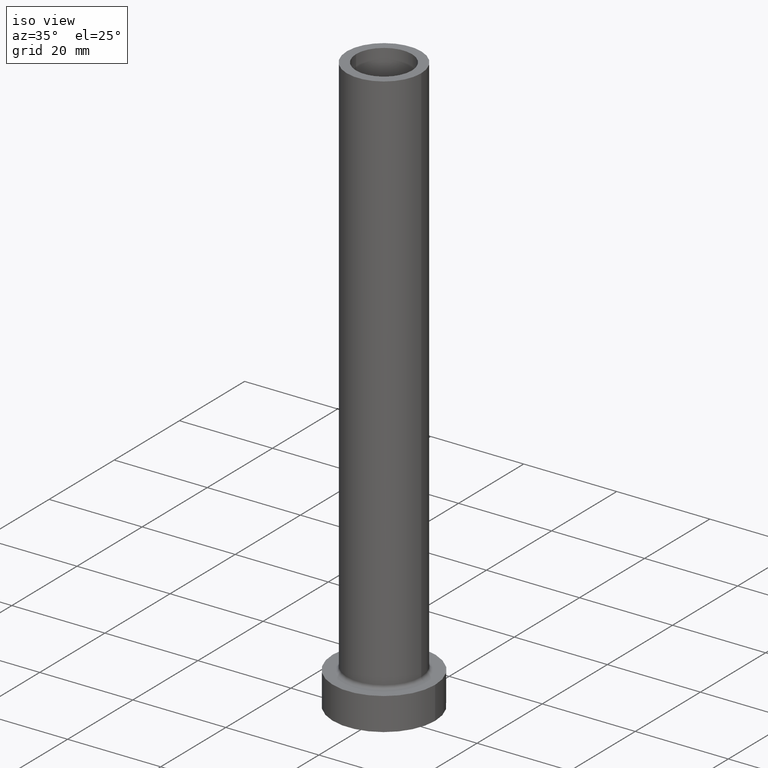
[diagram: clean part render]
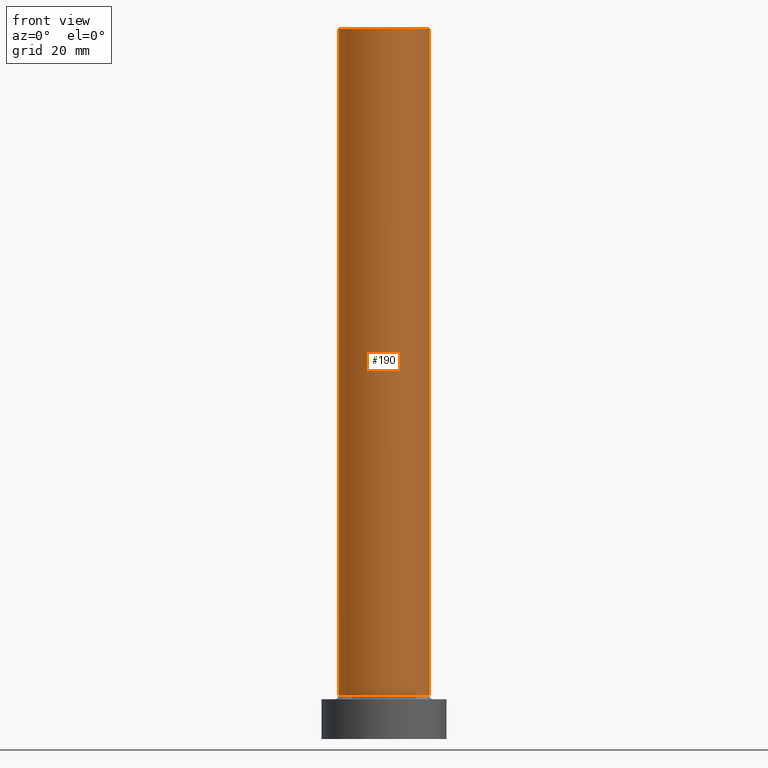
[diagram: tour spotlight — one face highlighted and labeled with its STEP entity id]
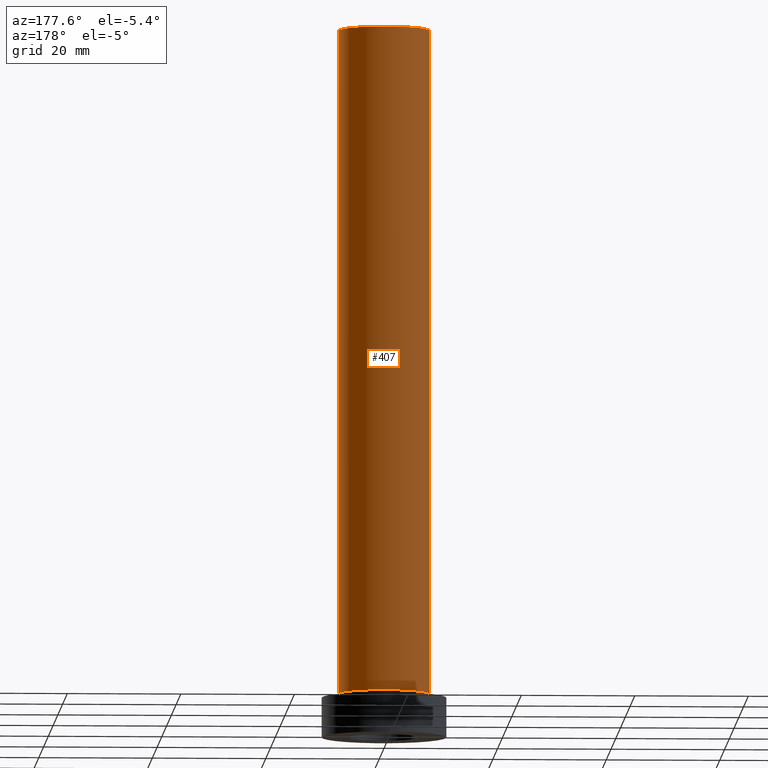
[diagram: tour spotlight — one face highlighted and labeled with its STEP entity id]
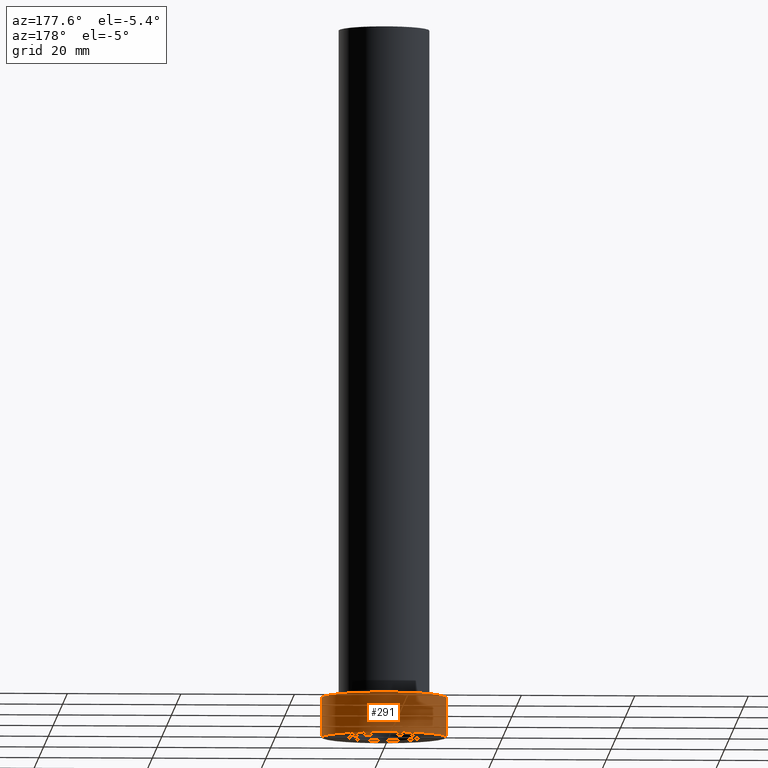
[diagram: tour spotlight — one face highlighted and labeled with its STEP entity id]
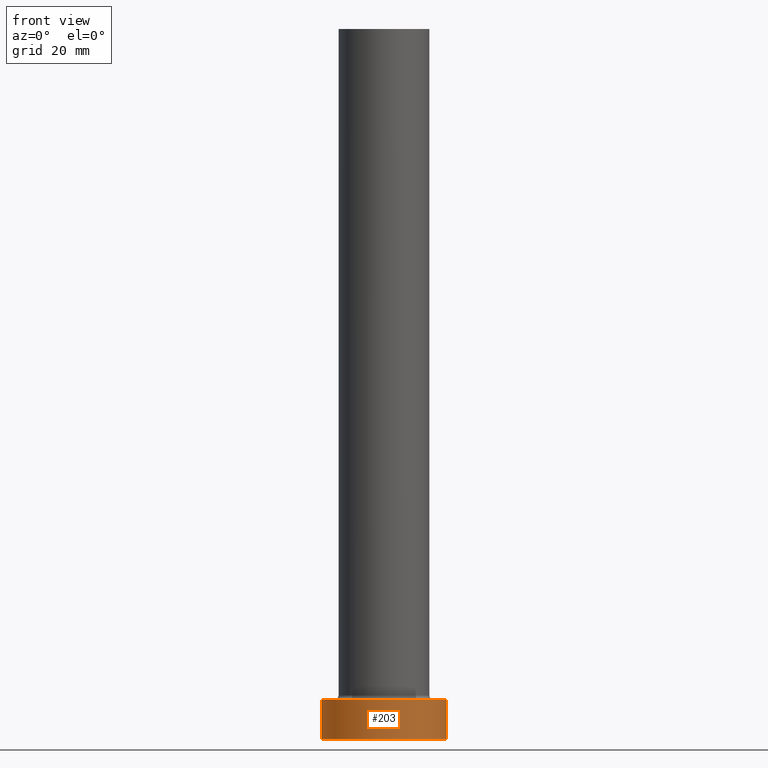
[diagram: tour spotlight — one face highlighted and labeled with its STEP entity id]
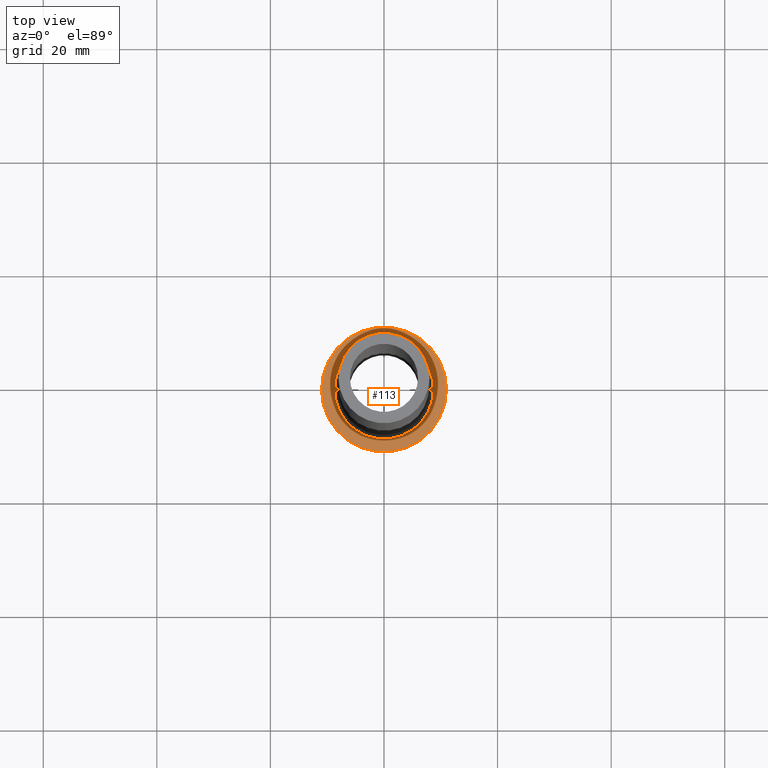
[diagram: tour spotlight — one face highlighted and labeled with its STEP entity id]
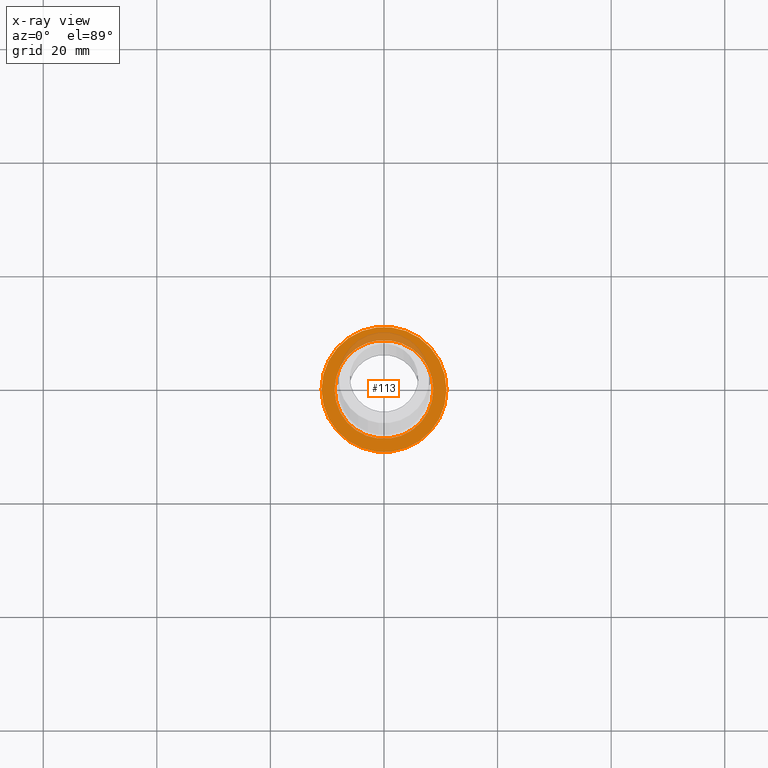
[diagram: x-ray of the same camera — body ghosted, this tour face saturated]
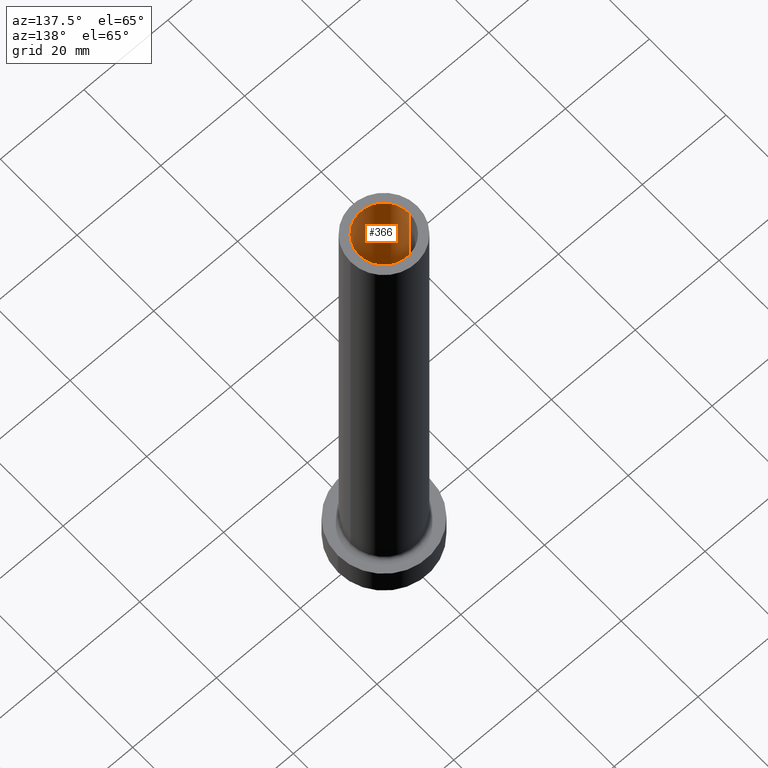
[diagram: tour spotlight — one face highlighted and labeled with its STEP entity id]
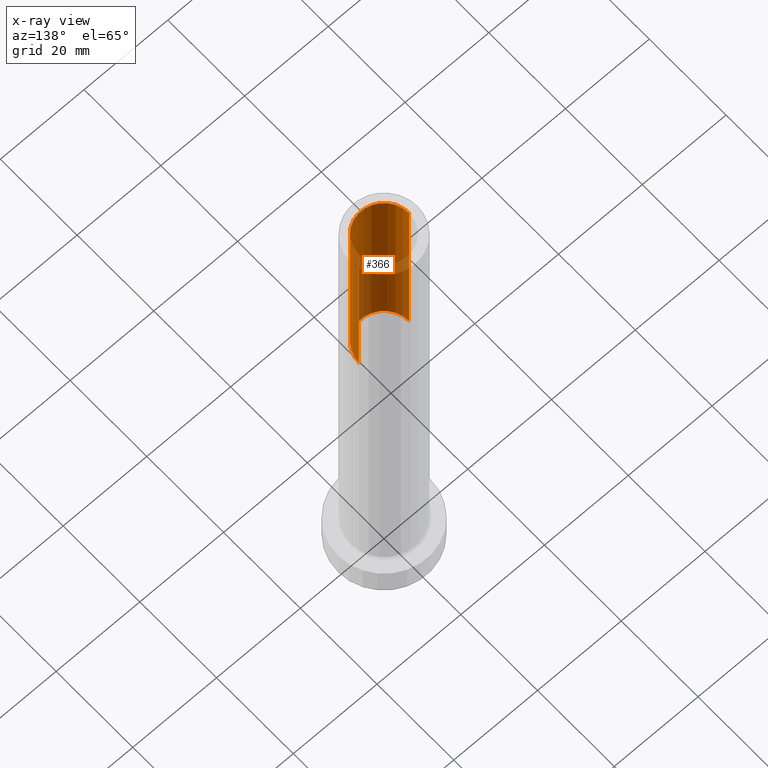
[diagram: x-ray of the same camera — body ghosted, this tour face saturated]
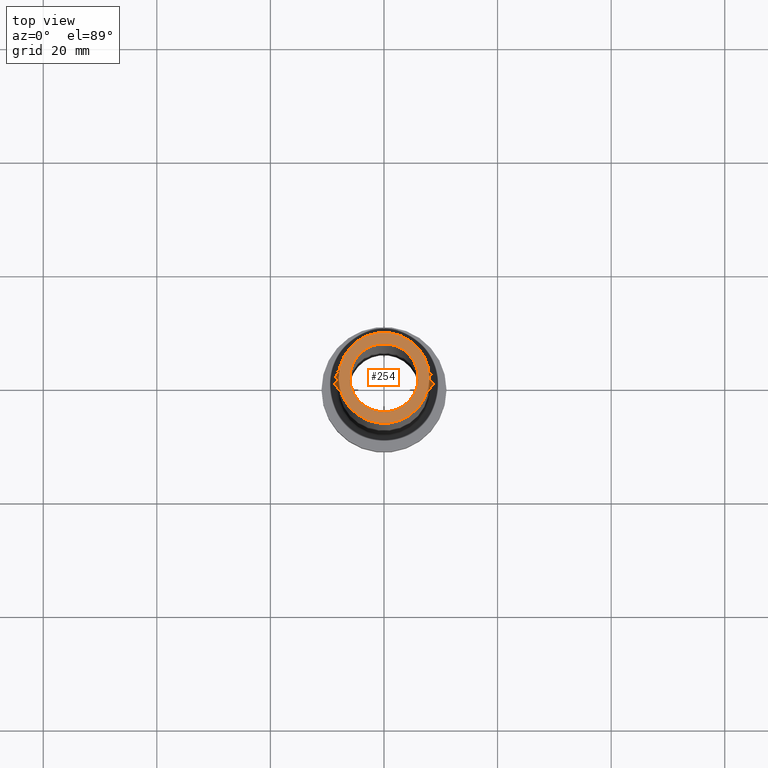
[diagram: tour spotlight — one face highlighted and labeled with its STEP entity id]
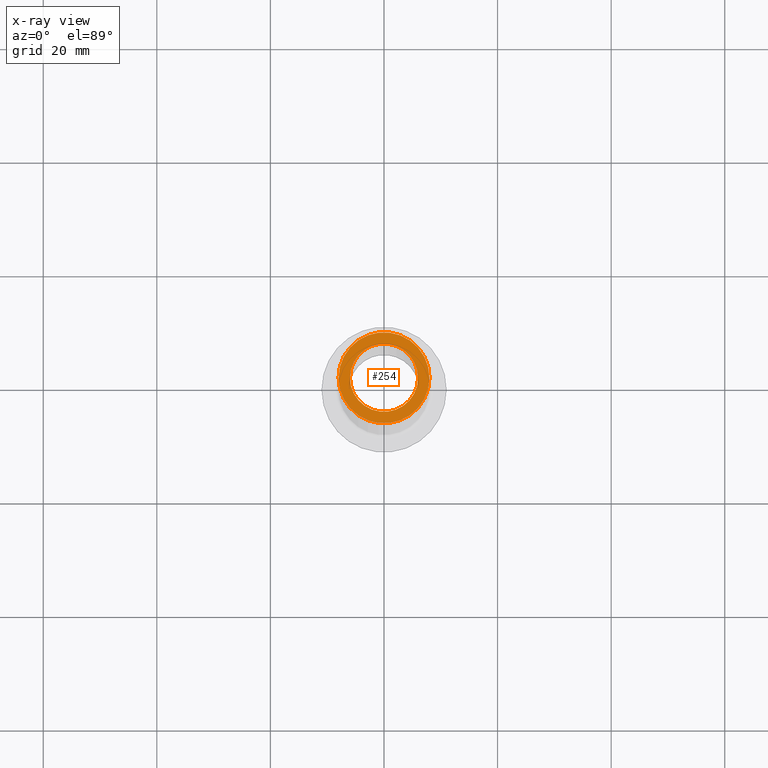
[diagram: x-ray of the same camera — body ghosted, this tour face saturated]
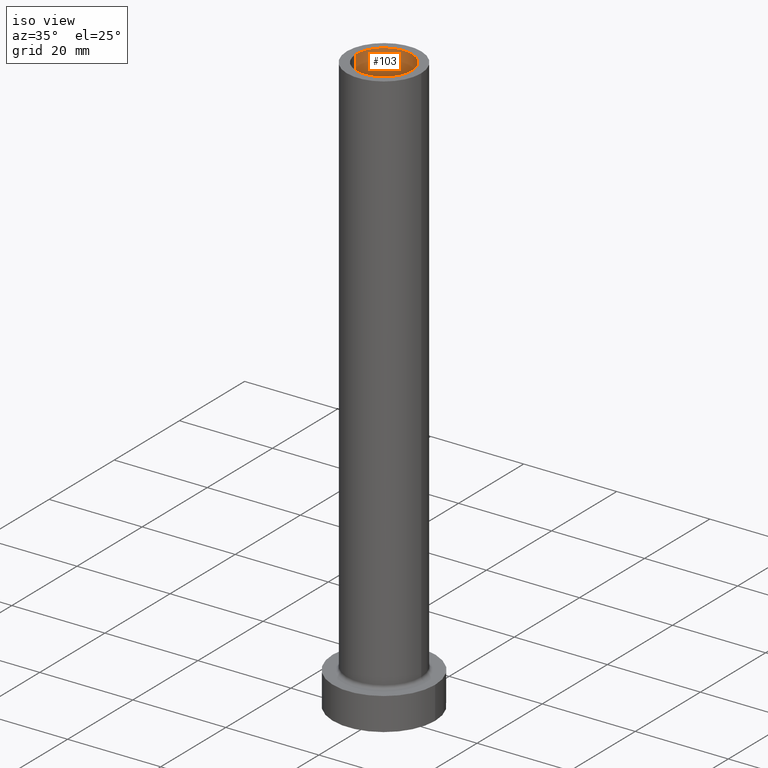
[diagram: tour spotlight — one face highlighted and labeled with its STEP entity id]
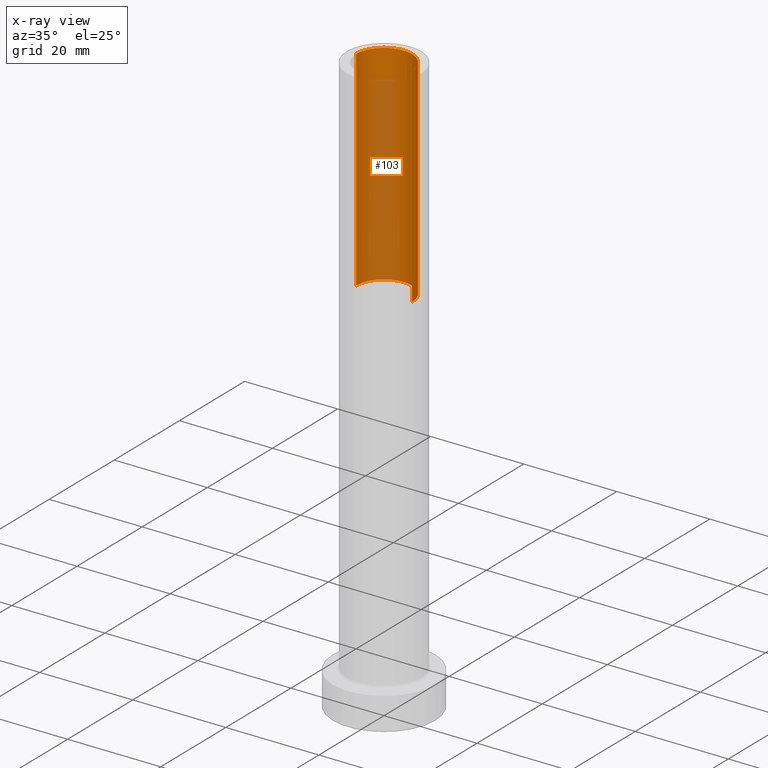
[diagram: x-ray of the same camera — body ghosted, this tour face saturated]
A machine part: a face-by-face anatomy tour. The part has 14 B-rep faces; the first image is the clean iso view, then the 8 largest visible faces are spotlighted one at a time (largest first), each with its STEP entity span.

Face 1 — front view, entity #190. In plain terms, the highlighted cylindrical surface (partial cylindrical patch) has radius 8 mm, axis along (-0, -0, -1).
Definition (entity closure, byte-faithful):
#8 = CARTESIAN_POINT ( 'NONE',  ( 8.000000000000000000, 9.797174393178825657E-16, 125.0000000000000000 ) ) ;
#11 = LINE ( 'NONE', #8, #439 ) ;
#19 = ORIENTED_EDGE ( 'NONE', *, *, #304, .F. ) ;
#43 = DIRECTION ( 'NONE',  ( -0.000000000000000000, -0.000000000000000000, -1.000000000000000000 ) ) ;
#47 = VERTEX_POINT ( 'NONE', #260 ) ;
#62 = DIRECTION ( 'NONE',  ( 1.000000000000000000, 0.000000000000000000, 0.000000000000000000 ) ) ;
#68 = CARTESIAN_POINT ( 'NONE',  ( 8.000000000000000000, 9.797174393178825657E-16, 7.699999999999998401 ) ) ;
#73 = DIRECTION ( 'NONE',  ( -0.000000000000000000, -0.000000000000000000, -1.000000000000000000 ) ) ;
#75 = CARTESIAN_POINT ( 'NONE',  ( 0.000000000000000000, 0.000000000000000000, 7.699999999999998401 ) ) ;
#80 = AXIS2_PLACEMENT_3D ( 'NONE', #75, #142, #437 ) ;
#86 = ORIENTED_EDGE ( 'NONE', *, *, #370, .T. ) ;
#88 = AXIS2_PLACEMENT_3D ( 'NONE', #352, #456, #62 ) ;
#127 = ORIENTED_EDGE ( 'NONE', *, *, #287, .F. ) ;
#142 = DIRECTION ( 'NONE',  ( 0.000000000000000000, 0.000000000000000000, 1.000000000000000000 ) ) ;
#144 = AXIS2_PLACEMENT_3D ( 'NONE', #251, #73, #288 ) ;
#190 = ADVANCED_FACE ( 'NONE', ( #280 ), #210, .T. ) ;
#193 = VERTEX_POINT ( 'NONE', #433 ) ;
#210 = CYLINDRICAL_SURFACE ( 'NONE', #144, 8.000000000000000000 ) ;
#240 = VERTEX_POINT ( 'NONE', #390 ) ;
#248 = DIRECTION ( 'NONE',  ( -0.000000000000000000, -0.000000000000000000, -1.000000000000000000 ) ) ;
#251 = CARTESIAN_POINT ( 'NONE',  ( 0.000000000000000000, 0.000000000000000000, 125.0000000000000000 ) ) ;
#260 = CARTESIAN_POINT ( 'NONE',  ( 8.000000000000000000, 9.797174393178825657E-16, 125.0000000000000000 ) ) ;
#280 = FACE_OUTER_BOUND ( 'NONE', #316, .T. ) ;
#285 = ORIENTED_EDGE ( 'NONE', *, *, #377, .T. ) ;
#287 = EDGE_CURVE ( 'NONE', #240, #47, #294, .T. ) ;
#288 = DIRECTION ( 'NONE',  ( -1.000000000000000000, 0.000000000000000000, 0.000000000000000000 ) ) ;
#294 = CIRCLE ( 'NONE', #88, 8.000000000000000000 ) ;
#295 = VECTOR ( 'NONE', #43, 1000.000000000000000 ) ;
#304 = EDGE_CURVE ( 'NONE', #47, #423, #11, .T. ) ;
#316 = EDGE_LOOP ( 'NONE', ( #19, #127, #285, #86 ) ) ;
#334 = CIRCLE ( 'NONE', #80, 8.000000000000000000 ) ;
#352 = CARTESIAN_POINT ( 'NONE',  ( 0.000000000000000000, 0.000000000000000000, 125.0000000000000000 ) ) ;
#367 = LINE ( 'NONE', #436, #295 ) ;
#370 = EDGE_CURVE ( 'NONE', #193, #423, #334, .T. ) ;
#377 = EDGE_CURVE ( 'NONE', #240, #193, #367, .T. ) ;
#390 = CARTESIAN_POINT ( 'NONE',  ( -8.000000000000000000, 0.000000000000000000, 125.0000000000000000 ) ) ;
#423 = VERTEX_POINT ( 'NONE', #68 ) ;
#433 = CARTESIAN_POINT ( 'NONE',  ( -8.000000000000000000, 0.000000000000000000, 7.699999999999998401 ) ) ;
#436 = CARTESIAN_POINT ( 'NONE',  ( -8.000000000000000000, 0.000000000000000000, 125.0000000000000000 ) ) ;
#437 = DIRECTION ( 'NONE',  ( 1.000000000000000000, 0.000000000000000000, 0.000000000000000000 ) ) ;
#439 = VECTOR ( 'NONE', #248, 1000.000000000000000 ) ;
#456 = DIRECTION ( 'NONE',  ( 0.000000000000000000, 0.000000000000000000, 1.000000000000000000 ) ) ;

Face 2 — auxiliary view, entity #407. In plain terms, the highlighted cylindrical surface (partial cylindrical patch) has radius 8 mm, axis along (-0, -0, -1).
Definition (entity closure, byte-faithful):
#6 = DIRECTION ( 'NONE',  ( -1.000000000000000000, 0.000000000000000000, 0.000000000000000000 ) ) ;
#8 = CARTESIAN_POINT ( 'NONE',  ( 8.000000000000000000, 9.797174393178825657E-16, 125.0000000000000000 ) ) ;
#11 = LINE ( 'NONE', #8, #439 ) ;
#29 = DIRECTION ( 'NONE',  ( -0.000000000000000000, -0.000000000000000000, -1.000000000000000000 ) ) ;
#33 = CARTESIAN_POINT ( 'NONE',  ( 0.000000000000000000, 0.000000000000000000, 125.0000000000000000 ) ) ;
#43 = DIRECTION ( 'NONE',  ( -0.000000000000000000, -0.000000000000000000, -1.000000000000000000 ) ) ;
#47 = VERTEX_POINT ( 'NONE', #260 ) ;
#68 = CARTESIAN_POINT ( 'NONE',  ( 8.000000000000000000, 9.797174393178825657E-16, 7.699999999999998401 ) ) ;
#92 = AXIS2_PLACEMENT_3D ( 'NONE', #33, #427, #317 ) ;
#124 = ORIENTED_EDGE ( 'NONE', *, *, #377, .F. ) ;
#145 = EDGE_CURVE ( 'NONE', #423, #193, #264, .T. ) ;
#171 = FACE_OUTER_BOUND ( 'NONE', #351, .T. ) ;
#181 = AXIS2_PLACEMENT_3D ( 'NONE', #349, #378, #440 ) ;
#193 = VERTEX_POINT ( 'NONE', #433 ) ;
#240 = VERTEX_POINT ( 'NONE', #390 ) ;
#248 = DIRECTION ( 'NONE',  ( -0.000000000000000000, -0.000000000000000000, -1.000000000000000000 ) ) ;
#260 = CARTESIAN_POINT ( 'NONE',  ( 8.000000000000000000, 9.797174393178825657E-16, 125.0000000000000000 ) ) ;
#264 = CIRCLE ( 'NONE', #181, 8.000000000000000000 ) ;
#273 = CIRCLE ( 'NONE', #92, 8.000000000000000000 ) ;
#283 = CARTESIAN_POINT ( 'NONE',  ( 0.000000000000000000, 0.000000000000000000, 125.0000000000000000 ) ) ;
#295 = VECTOR ( 'NONE', #43, 1000.000000000000000 ) ;
#300 = ORIENTED_EDGE ( 'NONE', *, *, #421, .F. ) ;
#304 = EDGE_CURVE ( 'NONE', #47, #423, #11, .T. ) ;
#317 = DIRECTION ( 'NONE',  ( 1.000000000000000000, 0.000000000000000000, 0.000000000000000000 ) ) ;
#321 = CYLINDRICAL_SURFACE ( 'NONE', #361, 8.000000000000000000 ) ;
#347 = ORIENTED_EDGE ( 'NONE', *, *, #145, .T. ) ;
#349 = CARTESIAN_POINT ( 'NONE',  ( 0.000000000000000000, 0.000000000000000000, 7.699999999999998401 ) ) ;
#351 = EDGE_LOOP ( 'NONE', ( #300, #395, #347, #124 ) ) ;
#361 = AXIS2_PLACEMENT_3D ( 'NONE', #283, #29, #6 ) ;
#367 = LINE ( 'NONE', #436, #295 ) ;
#377 = EDGE_CURVE ( 'NONE', #240, #193, #367, .T. ) ;
#378 = DIRECTION ( 'NONE',  ( 0.000000000000000000, 0.000000000000000000, 1.000000000000000000 ) ) ;
#390 = CARTESIAN_POINT ( 'NONE',  ( -8.000000000000000000, 0.000000000000000000, 125.0000000000000000 ) ) ;
#395 = ORIENTED_EDGE ( 'NONE', *, *, #304, .T. ) ;
#407 = ADVANCED_FACE ( 'NONE', ( #171 ), #321, .T. ) ;
#421 = EDGE_CURVE ( 'NONE', #47, #240, #273, .T. ) ;
#423 = VERTEX_POINT ( 'NONE', #68 ) ;
#427 = DIRECTION ( 'NONE',  ( 0.000000000000000000, 0.000000000000000000, 1.000000000000000000 ) ) ;
#433 = CARTESIAN_POINT ( 'NONE',  ( -8.000000000000000000, 0.000000000000000000, 7.699999999999998401 ) ) ;
#436 = CARTESIAN_POINT ( 'NONE',  ( -8.000000000000000000, 0.000000000000000000, 125.0000000000000000 ) ) ;
#439 = VECTOR ( 'NONE', #248, 1000.000000000000000 ) ;
#440 = DIRECTION ( 'NONE',  ( 1.000000000000000000, 0.000000000000000000, 0.000000000000000000 ) ) ;

Face 3 — auxiliary view, entity #291. In plain terms, the highlighted cylindrical surface (partial cylindrical patch) has radius 11 mm, axis along (-0, -0, -1).
Definition (entity closure, byte-faithful):
#39 = LINE ( 'NONE', #327, #141 ) ;
#50 = DIRECTION ( 'NONE',  ( 1.000000000000000000, 0.000000000000000000, 0.000000000000000000 ) ) ;
#59 = CARTESIAN_POINT ( 'NONE',  ( -11.00000000000000000, 0.000000000000000000, 7.000000000000000000 ) ) ;
#128 = EDGE_CURVE ( 'NONE', #405, #196, #355, .T. ) ;
#141 = VECTOR ( 'NONE', #161, 1000.000000000000000 ) ;
#147 = VERTEX_POINT ( 'NONE', #156 ) ;
#150 = DIRECTION ( 'NONE',  ( 0.000000000000000000, 0.000000000000000000, 1.000000000000000000 ) ) ;
#156 = CARTESIAN_POINT ( 'NONE',  ( -11.00000000000000000, 0.000000000000000000, 0.000000000000000000 ) ) ;
#158 = ORIENTED_EDGE ( 'NONE', *, *, #411, .T. ) ;
#159 = CYLINDRICAL_SURFACE ( 'NONE', #259, 11.00000000000000000 ) ;
#161 = DIRECTION ( 'NONE',  ( -0.000000000000000000, -0.000000000000000000, -1.000000000000000000 ) ) ;
#166 = CARTESIAN_POINT ( 'NONE',  ( 11.00000000000000000, 1.347111479062088405E-15, 0.000000000000000000 ) ) ;
#176 = CIRCLE ( 'NONE', #267, 11.00000000000000000 ) ;
#188 = EDGE_LOOP ( 'NONE', ( #211, #158, #353, #422 ) ) ;
#196 = VERTEX_POINT ( 'NONE', #59 ) ;
#205 = FACE_OUTER_BOUND ( 'NONE', #188, .T. ) ;
#211 = ORIENTED_EDGE ( 'NONE', *, *, #128, .F. ) ;
#214 = VERTEX_POINT ( 'NONE', #166 ) ;
#229 = CARTESIAN_POINT ( 'NONE',  ( -11.00000000000000000, 0.000000000000000000, 7.000000000000000000 ) ) ;
#232 = DIRECTION ( 'NONE',  ( -0.000000000000000000, -0.000000000000000000, -1.000000000000000000 ) ) ;
#235 = CARTESIAN_POINT ( 'NONE',  ( 0.000000000000000000, 0.000000000000000000, 7.000000000000000000 ) ) ;
#242 = DIRECTION ( 'NONE',  ( -0.000000000000000000, -0.000000000000000000, -1.000000000000000000 ) ) ;
#249 = VECTOR ( 'NONE', #232, 1000.000000000000000 ) ;
#259 = AXIS2_PLACEMENT_3D ( 'NONE', #279, #242, #438 ) ;
#267 = AXIS2_PLACEMENT_3D ( 'NONE', #379, #150, #50 ) ;
#279 = CARTESIAN_POINT ( 'NONE',  ( 0.000000000000000000, 0.000000000000000000, 7.000000000000000000 ) ) ;
#291 = ADVANCED_FACE ( 'NONE', ( #205 ), #159, .T. ) ;
#327 = CARTESIAN_POINT ( 'NONE',  ( 11.00000000000000000, 1.347111479062088405E-15, 7.000000000000000000 ) ) ;
#337 = EDGE_CURVE ( 'NONE', #196, #147, #418, .T. ) ;
#338 = EDGE_CURVE ( 'NONE', #214, #147, #176, .T. ) ;
#345 = DIRECTION ( 'NONE',  ( 1.000000000000000000, 0.000000000000000000, 0.000000000000000000 ) ) ;
#353 = ORIENTED_EDGE ( 'NONE', *, *, #338, .T. ) ;
#355 = CIRCLE ( 'NONE', #416, 11.00000000000000000 ) ;
#379 = CARTESIAN_POINT ( 'NONE',  ( 0.000000000000000000, 0.000000000000000000, 0.000000000000000000 ) ) ;
#405 = VERTEX_POINT ( 'NONE', #424 ) ;
#411 = EDGE_CURVE ( 'NONE', #405, #214, #39, .T. ) ;
#416 = AXIS2_PLACEMENT_3D ( 'NONE', #235, #454, #345 ) ;
#418 = LINE ( 'NONE', #229, #249 ) ;
#422 = ORIENTED_EDGE ( 'NONE', *, *, #337, .F. ) ;
#424 = CARTESIAN_POINT ( 'NONE',  ( 11.00000000000000000, 1.347111479062088405E-15, 7.000000000000000000 ) ) ;
#438 = DIRECTION ( 'NONE',  ( -1.000000000000000000, 0.000000000000000000, 0.000000000000000000 ) ) ;
#454 = DIRECTION ( 'NONE',  ( 0.000000000000000000, 0.000000000000000000, 1.000000000000000000 ) ) ;

Face 4 — front view, entity #203. In plain terms, the highlighted cylindrical surface (partial cylindrical patch) has radius 11 mm, axis along (-0, -0, -1).
Definition (entity closure, byte-faithful):
#21 = ORIENTED_EDGE ( 'NONE', *, *, #411, .F. ) ;
#36 = DIRECTION ( 'NONE',  ( 0.000000000000000000, 0.000000000000000000, 1.000000000000000000 ) ) ;
#39 = LINE ( 'NONE', #327, #141 ) ;
#41 = AXIS2_PLACEMENT_3D ( 'NONE', #252, #36, #459 ) ;
#51 = ORIENTED_EDGE ( 'NONE', *, *, #319, .T. ) ;
#56 = FACE_OUTER_BOUND ( 'NONE', #308, .T. ) ;
#59 = CARTESIAN_POINT ( 'NONE',  ( -11.00000000000000000, 0.000000000000000000, 7.000000000000000000 ) ) ;
#91 = CYLINDRICAL_SURFACE ( 'NONE', #256, 11.00000000000000000 ) ;
#94 = CARTESIAN_POINT ( 'NONE',  ( 0.000000000000000000, 0.000000000000000000, 7.000000000000000000 ) ) ;
#130 = ORIENTED_EDGE ( 'NONE', *, *, #337, .T. ) ;
#141 = VECTOR ( 'NONE', #161, 1000.000000000000000 ) ;
#147 = VERTEX_POINT ( 'NONE', #156 ) ;
#155 = CIRCLE ( 'NONE', #221, 11.00000000000000000 ) ;
#156 = CARTESIAN_POINT ( 'NONE',  ( -11.00000000000000000, 0.000000000000000000, 0.000000000000000000 ) ) ;
#161 = DIRECTION ( 'NONE',  ( -0.000000000000000000, -0.000000000000000000, -1.000000000000000000 ) ) ;
#166 = CARTESIAN_POINT ( 'NONE',  ( 11.00000000000000000, 1.347111479062088405E-15, 0.000000000000000000 ) ) ;
#196 = VERTEX_POINT ( 'NONE', #59 ) ;
#198 = DIRECTION ( 'NONE',  ( 1.000000000000000000, 0.000000000000000000, 0.000000000000000000 ) ) ;
#203 = ADVANCED_FACE ( 'NONE', ( #56 ), #91, .T. ) ;
#214 = VERTEX_POINT ( 'NONE', #166 ) ;
#221 = AXIS2_PLACEMENT_3D ( 'NONE', #371, #236, #198 ) ;
#229 = CARTESIAN_POINT ( 'NONE',  ( -11.00000000000000000, 0.000000000000000000, 7.000000000000000000 ) ) ;
#232 = DIRECTION ( 'NONE',  ( -0.000000000000000000, -0.000000000000000000, -1.000000000000000000 ) ) ;
#236 = DIRECTION ( 'NONE',  ( 0.000000000000000000, 0.000000000000000000, 1.000000000000000000 ) ) ;
#249 = VECTOR ( 'NONE', #232, 1000.000000000000000 ) ;
#252 = CARTESIAN_POINT ( 'NONE',  ( 0.000000000000000000, 0.000000000000000000, 7.000000000000000000 ) ) ;
#256 = AXIS2_PLACEMENT_3D ( 'NONE', #94, #385, #460 ) ;
#308 = EDGE_LOOP ( 'NONE', ( #21, #325, #130, #51 ) ) ;
#319 = EDGE_CURVE ( 'NONE', #147, #214, #155, .T. ) ;
#325 = ORIENTED_EDGE ( 'NONE', *, *, #445, .F. ) ;
#327 = CARTESIAN_POINT ( 'NONE',  ( 11.00000000000000000, 1.347111479062088405E-15, 7.000000000000000000 ) ) ;
#337 = EDGE_CURVE ( 'NONE', #196, #147, #418, .T. ) ;
#371 = CARTESIAN_POINT ( 'NONE',  ( 0.000000000000000000, 0.000000000000000000, 0.000000000000000000 ) ) ;
#385 = DIRECTION ( 'NONE',  ( -0.000000000000000000, -0.000000000000000000, -1.000000000000000000 ) ) ;
#393 = CIRCLE ( 'NONE', #41, 11.00000000000000000 ) ;
#405 = VERTEX_POINT ( 'NONE', #424 ) ;
#411 = EDGE_CURVE ( 'NONE', #405, #214, #39, .T. ) ;
#418 = LINE ( 'NONE', #229, #249 ) ;
#424 = CARTESIAN_POINT ( 'NONE',  ( 11.00000000000000000, 1.347111479062088405E-15, 7.000000000000000000 ) ) ;
#445 = EDGE_CURVE ( 'NONE', #196, #405, #393, .T. ) ;
#459 = DIRECTION ( 'NONE',  ( 1.000000000000000000, 0.000000000000000000, 0.000000000000000000 ) ) ;
#460 = DIRECTION ( 'NONE',  ( -1.000000000000000000, 0.000000000000000000, 0.000000000000000000 ) ) ;

Face 5 — top view, entity #113. An x-ray twin of the same camera follows (body ghosted, this face saturated) — the face is partly hidden behind the body. In plain terms, the highlighted planar face has unit normal (0, 0, 1).
Definition (entity closure, byte-faithful):
#36 = DIRECTION ( 'NONE',  ( 0.000000000000000000, 0.000000000000000000, 1.000000000000000000 ) ) ;
#41 = AXIS2_PLACEMENT_3D ( 'NONE', #252, #36, #459 ) ;
#59 = CARTESIAN_POINT ( 'NONE',  ( -11.00000000000000000, 0.000000000000000000, 7.000000000000000000 ) ) ;
#65 = DIRECTION ( 'NONE',  ( -0.000000000000000000, -0.000000000000000000, -1.000000000000000000 ) ) ;
#78 = PLANE ( 'NONE',  #84 ) ;
#84 = AXIS2_PLACEMENT_3D ( 'NONE', #307, #89, #118 ) ;
#89 = DIRECTION ( 'NONE',  ( 0.000000000000000000, 0.000000000000000000, 1.000000000000000000 ) ) ;
#90 = EDGE_LOOP ( 'NONE', ( #104, #341 ) ) ;
#93 = DIRECTION ( 'NONE',  ( -0.000000000000000000, -0.000000000000000000, -1.000000000000000000 ) ) ;
#95 = ORIENTED_EDGE ( 'NONE', *, *, #458, .T. ) ;
#104 = ORIENTED_EDGE ( 'NONE', *, *, #445, .T. ) ;
#105 = DIRECTION ( 'NONE',  ( 1.000000000000000000, 0.000000000000000000, 0.000000000000000000 ) ) ;
#113 = ADVANCED_FACE ( 'NONE', ( #266, #187 ), #78, .T. ) ;
#118 = DIRECTION ( 'NONE',  ( 1.000000000000000000, 0.000000000000000000, -0.000000000000000000 ) ) ;
#119 = VERTEX_POINT ( 'NONE', #311 ) ;
#128 = EDGE_CURVE ( 'NONE', #405, #196, #355, .T. ) ;
#140 = EDGE_CURVE ( 'NONE', #302, #119, #209, .T. ) ;
#153 = AXIS2_PLACEMENT_3D ( 'NONE', #419, #93, #201 ) ;
#179 = CIRCLE ( 'NONE', #384, 8.699999999999999289 ) ;
#187 = FACE_OUTER_BOUND ( 'NONE', #90, .T. ) ;
#196 = VERTEX_POINT ( 'NONE', #59 ) ;
#201 = DIRECTION ( 'NONE',  ( 1.000000000000000000, 0.000000000000000000, 0.000000000000000000 ) ) ;
#209 = CIRCLE ( 'NONE', #153, 8.699999999999999289 ) ;
#218 = CARTESIAN_POINT ( 'NONE',  ( 8.699999999999999289, 0.000000000000000000, 6.999999999999999112 ) ) ;
#226 = ORIENTED_EDGE ( 'NONE', *, *, #140, .T. ) ;
#230 = EDGE_LOOP ( 'NONE', ( #226, #95 ) ) ;
#235 = CARTESIAN_POINT ( 'NONE',  ( 0.000000000000000000, 0.000000000000000000, 7.000000000000000000 ) ) ;
#252 = CARTESIAN_POINT ( 'NONE',  ( 0.000000000000000000, 0.000000000000000000, 7.000000000000000000 ) ) ;
#266 = FACE_BOUND ( 'NONE', #230, .T. ) ;
#302 = VERTEX_POINT ( 'NONE', #218 ) ;
#307 = CARTESIAN_POINT ( 'NONE',  ( 0.000000000000000000, 0.000000000000000000, 7.000000000000000000 ) ) ;
#311 = CARTESIAN_POINT ( 'NONE',  ( -8.699999999999999289, 1.065442715258197248E-15, 6.999999999999999112 ) ) ;
#341 = ORIENTED_EDGE ( 'NONE', *, *, #128, .T. ) ;
#345 = DIRECTION ( 'NONE',  ( 1.000000000000000000, 0.000000000000000000, 0.000000000000000000 ) ) ;
#355 = CIRCLE ( 'NONE', #416, 11.00000000000000000 ) ;
#384 = AXIS2_PLACEMENT_3D ( 'NONE', #408, #65, #105 ) ;
#393 = CIRCLE ( 'NONE', #41, 11.00000000000000000 ) ;
#405 = VERTEX_POINT ( 'NONE', #424 ) ;
#408 = CARTESIAN_POINT ( 'NONE',  ( 0.000000000000000000, 0.000000000000000000, 7.000000000000000000 ) ) ;
#416 = AXIS2_PLACEMENT_3D ( 'NONE', #235, #454, #345 ) ;
#419 = CARTESIAN_POINT ( 'NONE',  ( 0.000000000000000000, 0.000000000000000000, 7.000000000000000000 ) ) ;
#424 = CARTESIAN_POINT ( 'NONE',  ( 11.00000000000000000, 1.347111479062088405E-15, 7.000000000000000000 ) ) ;
#445 = EDGE_CURVE ( 'NONE', #196, #405, #393, .T. ) ;
#454 = DIRECTION ( 'NONE',  ( 0.000000000000000000, 0.000000000000000000, 1.000000000000000000 ) ) ;
#458 = EDGE_CURVE ( 'NONE', #119, #302, #179, .T. ) ;
#459 = DIRECTION ( 'NONE',  ( 1.000000000000000000, 0.000000000000000000, 0.000000000000000000 ) ) ;

Face 6 — auxiliary view, entity #366. An x-ray twin of the same camera follows (body ghosted, this face saturated) — the face is partly hidden behind the body. In plain terms, the highlighted cylindrical surface (edge-blend (fillet) strip) has radius 6 mm, axis along (0, 0, -1).
Definition (entity closure, byte-faithful):
#2 = VERTEX_POINT ( 'NONE', #250 ) ;
#4 = AXIS2_PLACEMENT_3D ( 'NONE', #340, #83, #441 ) ;
#17 = EDGE_CURVE ( 'NONE', #442, #131, #399, .T. ) ;
#28 = ORIENTED_EDGE ( 'NONE', *, *, #17, .T. ) ;
#54 = LINE ( 'NONE', #195, #139 ) ;
#58 = ORIENTED_EDGE ( 'NONE', *, *, #278, .T. ) ;
#83 = DIRECTION ( 'NONE',  ( 0.000000000000000000, 0.000000000000000000, 1.000000000000000000 ) ) ;
#97 = CYLINDRICAL_SURFACE ( 'NONE', #309, 6.000000000000000888 ) ;
#120 = CARTESIAN_POINT ( 'NONE',  ( 6.000000000000000888, 7.347880794884119736E-16, 125.0000000000000000 ) ) ;
#121 = FACE_OUTER_BOUND ( 'NONE', #263, .T. ) ;
#131 = VERTEX_POINT ( 'NONE', #120 ) ;
#139 = VECTOR ( 'NONE', #271, 1000.000000000000000 ) ;
#162 = CIRCLE ( 'NONE', #432, 6.000000000000000888 ) ;
#163 = DIRECTION ( 'NONE',  ( 0.000000000000000000, 0.000000000000000000, -1.000000000000000000 ) ) ;
#184 = DIRECTION ( 'NONE',  ( 0.000000000000000000, 0.000000000000000000, 1.000000000000000000 ) ) ;
#195 = CARTESIAN_POINT ( 'NONE',  ( -6.000000000000000888, 0.000000000000000000, 125.0000000000000000 ) ) ;
#202 = ORIENTED_EDGE ( 'NONE', *, *, #344, .F. ) ;
#238 = CARTESIAN_POINT ( 'NONE',  ( 6.000000000000000888, 7.347880794884119736E-16, 125.0000000000000000 ) ) ;
#250 = CARTESIAN_POINT ( 'NONE',  ( 6.000000000000000888, 7.347880794884119736E-16, 80.00000000000000000 ) ) ;
#263 = EDGE_LOOP ( 'NONE', ( #28, #58, #402, #202 ) ) ;
#271 = DIRECTION ( 'NONE',  ( 0.000000000000000000, 0.000000000000000000, -1.000000000000000000 ) ) ;
#274 = LINE ( 'NONE', #238, #417 ) ;
#278 = EDGE_CURVE ( 'NONE', #131, #2, #274, .T. ) ;
#284 = CARTESIAN_POINT ( 'NONE',  ( 0.000000000000000000, 0.000000000000000000, 80.00000000000000000 ) ) ;
#297 = DIRECTION ( 'NONE',  ( -1.000000000000000000, 0.000000000000000000, 0.000000000000000000 ) ) ;
#298 = EDGE_CURVE ( 'NONE', #357, #2, #162, .T. ) ;
#309 = AXIS2_PLACEMENT_3D ( 'NONE', #394, #163, #297 ) ;
#315 = DIRECTION ( 'NONE',  ( 0.000000000000000000, 0.000000000000000000, -1.000000000000000000 ) ) ;
#335 = DIRECTION ( 'NONE',  ( 1.000000000000000000, 0.000000000000000000, 0.000000000000000000 ) ) ;
#340 = CARTESIAN_POINT ( 'NONE',  ( 0.000000000000000000, 0.000000000000000000, 125.0000000000000000 ) ) ;
#344 = EDGE_CURVE ( 'NONE', #442, #357, #54, .T. ) ;
#357 = VERTEX_POINT ( 'NONE', #451 ) ;
#366 = ADVANCED_FACE ( 'NONE', ( #121 ), #97, .F. ) ;
#394 = CARTESIAN_POINT ( 'NONE',  ( 0.000000000000000000, 0.000000000000000000, 125.0000000000000000 ) ) ;
#399 = CIRCLE ( 'NONE', #4, 6.000000000000000888 ) ;
#402 = ORIENTED_EDGE ( 'NONE', *, *, #298, .F. ) ;
#417 = VECTOR ( 'NONE', #315, 1000.000000000000000 ) ;
#431 = CARTESIAN_POINT ( 'NONE',  ( -6.000000000000000888, 0.000000000000000000, 125.0000000000000000 ) ) ;
#432 = AXIS2_PLACEMENT_3D ( 'NONE', #284, #184, #335 ) ;
#441 = DIRECTION ( 'NONE',  ( 1.000000000000000000, 0.000000000000000000, 0.000000000000000000 ) ) ;
#442 = VERTEX_POINT ( 'NONE', #431 ) ;
#451 = CARTESIAN_POINT ( 'NONE',  ( -6.000000000000000888, 0.000000000000000000, 80.00000000000000000 ) ) ;

Face 7 — top view, entity #254. An x-ray twin of the same camera follows (body ghosted, this face saturated) — the face is partly hidden behind the body. In plain terms, the highlighted planar face has unit normal (0, 0, 1).
Definition (entity closure, byte-faithful):
#1 = DIRECTION ( 'NONE',  ( 0.000000000000000000, 0.000000000000000000, 1.000000000000000000 ) ) ;
#4 = AXIS2_PLACEMENT_3D ( 'NONE', #340, #83, #441 ) ;
#17 = EDGE_CURVE ( 'NONE', #442, #131, #399, .T. ) ;
#31 = AXIS2_PLACEMENT_3D ( 'NONE', #323, #1, #268 ) ;
#33 = CARTESIAN_POINT ( 'NONE',  ( 0.000000000000000000, 0.000000000000000000, 125.0000000000000000 ) ) ;
#47 = VERTEX_POINT ( 'NONE', #260 ) ;
#55 = EDGE_LOOP ( 'NONE', ( #122, #223 ) ) ;
#62 = DIRECTION ( 'NONE',  ( 1.000000000000000000, 0.000000000000000000, 0.000000000000000000 ) ) ;
#66 = FACE_BOUND ( 'NONE', #382, .T. ) ;
#67 = EDGE_CURVE ( 'NONE', #131, #442, #160, .T. ) ;
#83 = DIRECTION ( 'NONE',  ( 0.000000000000000000, 0.000000000000000000, 1.000000000000000000 ) ) ;
#88 = AXIS2_PLACEMENT_3D ( 'NONE', #352, #456, #62 ) ;
#92 = AXIS2_PLACEMENT_3D ( 'NONE', #33, #427, #317 ) ;
#120 = CARTESIAN_POINT ( 'NONE',  ( 6.000000000000000888, 7.347880794884119736E-16, 125.0000000000000000 ) ) ;
#122 = ORIENTED_EDGE ( 'NONE', *, *, #287, .T. ) ;
#126 = PLANE ( 'NONE',  #31 ) ;
#131 = VERTEX_POINT ( 'NONE', #120 ) ;
#154 = ORIENTED_EDGE ( 'NONE', *, *, #17, .F. ) ;
#160 = CIRCLE ( 'NONE', #434, 6.000000000000000888 ) ;
#197 = DIRECTION ( 'NONE',  ( 1.000000000000000000, 0.000000000000000000, 0.000000000000000000 ) ) ;
#223 = ORIENTED_EDGE ( 'NONE', *, *, #421, .T. ) ;
#240 = VERTEX_POINT ( 'NONE', #390 ) ;
#254 = ADVANCED_FACE ( 'NONE', ( #66, #398 ), #126, .T. ) ;
#260 = CARTESIAN_POINT ( 'NONE',  ( 8.000000000000000000, 9.797174393178825657E-16, 125.0000000000000000 ) ) ;
#268 = DIRECTION ( 'NONE',  ( 1.000000000000000000, 0.000000000000000000, -0.000000000000000000 ) ) ;
#273 = CIRCLE ( 'NONE', #92, 8.000000000000000000 ) ;
#287 = EDGE_CURVE ( 'NONE', #240, #47, #294, .T. ) ;
#294 = CIRCLE ( 'NONE', #88, 8.000000000000000000 ) ;
#299 = CARTESIAN_POINT ( 'NONE',  ( 0.000000000000000000, 0.000000000000000000, 125.0000000000000000 ) ) ;
#317 = DIRECTION ( 'NONE',  ( 1.000000000000000000, 0.000000000000000000, 0.000000000000000000 ) ) ;
#323 = CARTESIAN_POINT ( 'NONE',  ( 0.000000000000000000, 0.000000000000000000, 125.0000000000000000 ) ) ;
#340 = CARTESIAN_POINT ( 'NONE',  ( 0.000000000000000000, 0.000000000000000000, 125.0000000000000000 ) ) ;
#352 = CARTESIAN_POINT ( 'NONE',  ( 0.000000000000000000, 0.000000000000000000, 125.0000000000000000 ) ) ;
#372 = DIRECTION ( 'NONE',  ( 0.000000000000000000, 0.000000000000000000, 1.000000000000000000 ) ) ;
#382 = EDGE_LOOP ( 'NONE', ( #154, #426 ) ) ;
#390 = CARTESIAN_POINT ( 'NONE',  ( -8.000000000000000000, 0.000000000000000000, 125.0000000000000000 ) ) ;
#398 = FACE_OUTER_BOUND ( 'NONE', #55, .T. ) ;
#399 = CIRCLE ( 'NONE', #4, 6.000000000000000888 ) ;
#421 = EDGE_CURVE ( 'NONE', #47, #240, #273, .T. ) ;
#426 = ORIENTED_EDGE ( 'NONE', *, *, #67, .F. ) ;
#427 = DIRECTION ( 'NONE',  ( 0.000000000000000000, 0.000000000000000000, 1.000000000000000000 ) ) ;
#431 = CARTESIAN_POINT ( 'NONE',  ( -6.000000000000000888, 0.000000000000000000, 125.0000000000000000 ) ) ;
#434 = AXIS2_PLACEMENT_3D ( 'NONE', #299, #372, #197 ) ;
#441 = DIRECTION ( 'NONE',  ( 1.000000000000000000, 0.000000000000000000, 0.000000000000000000 ) ) ;
#442 = VERTEX_POINT ( 'NONE', #431 ) ;
#456 = DIRECTION ( 'NONE',  ( 0.000000000000000000, 0.000000000000000000, 1.000000000000000000 ) ) ;

Face 8 — iso view, entity #103. An x-ray twin of the same camera follows (body ghosted, this face saturated) — the face is partly hidden behind the body. In plain terms, the highlighted cylindrical surface (edge-blend (fillet) strip) has radius 6 mm, axis along (0, 0, -1).
Definition (entity closure, byte-faithful):
#2 = VERTEX_POINT ( 'NONE', #250 ) ;
#22 = FACE_OUTER_BOUND ( 'NONE', #375, .T. ) ;
#44 = DIRECTION ( 'NONE',  ( 0.000000000000000000, 0.000000000000000000, -1.000000000000000000 ) ) ;
#54 = LINE ( 'NONE', #195, #139 ) ;
#67 = EDGE_CURVE ( 'NONE', #131, #442, #160, .T. ) ;
#79 = ORIENTED_EDGE ( 'NONE', *, *, #344, .T. ) ;
#82 = CYLINDRICAL_SURFACE ( 'NONE', #293, 6.000000000000000888 ) ;
#103 = ADVANCED_FACE ( 'NONE', ( #22 ), #82, .F. ) ;
#114 = DIRECTION ( 'NONE',  ( 0.000000000000000000, 0.000000000000000000, 1.000000000000000000 ) ) ;
#120 = CARTESIAN_POINT ( 'NONE',  ( 6.000000000000000888, 7.347880794884119736E-16, 125.0000000000000000 ) ) ;
#131 = VERTEX_POINT ( 'NONE', #120 ) ;
#139 = VECTOR ( 'NONE', #271, 1000.000000000000000 ) ;
#143 = DIRECTION ( 'NONE',  ( 1.000000000000000000, 0.000000000000000000, 0.000000000000000000 ) ) ;
#157 = EDGE_CURVE ( 'NONE', #2, #357, #448, .T. ) ;
#160 = CIRCLE ( 'NONE', #434, 6.000000000000000888 ) ;
#194 = DIRECTION ( 'NONE',  ( -1.000000000000000000, 0.000000000000000000, 0.000000000000000000 ) ) ;
#195 = CARTESIAN_POINT ( 'NONE',  ( -6.000000000000000888, 0.000000000000000000, 125.0000000000000000 ) ) ;
#197 = DIRECTION ( 'NONE',  ( 1.000000000000000000, 0.000000000000000000, 0.000000000000000000 ) ) ;
#238 = CARTESIAN_POINT ( 'NONE',  ( 6.000000000000000888, 7.347880794884119736E-16, 125.0000000000000000 ) ) ;
#246 = AXIS2_PLACEMENT_3D ( 'NONE', #339, #114, #143 ) ;
#250 = CARTESIAN_POINT ( 'NONE',  ( 6.000000000000000888, 7.347880794884119736E-16, 80.00000000000000000 ) ) ;
#271 = DIRECTION ( 'NONE',  ( 0.000000000000000000, 0.000000000000000000, -1.000000000000000000 ) ) ;
#274 = LINE ( 'NONE', #238, #417 ) ;
#277 = ORIENTED_EDGE ( 'NONE', *, *, #278, .F. ) ;
#278 = EDGE_CURVE ( 'NONE', #131, #2, #274, .T. ) ;
#293 = AXIS2_PLACEMENT_3D ( 'NONE', #450, #44, #194 ) ;
#299 = CARTESIAN_POINT ( 'NONE',  ( 0.000000000000000000, 0.000000000000000000, 125.0000000000000000 ) ) ;
#315 = DIRECTION ( 'NONE',  ( 0.000000000000000000, 0.000000000000000000, -1.000000000000000000 ) ) ;
#339 = CARTESIAN_POINT ( 'NONE',  ( 0.000000000000000000, 0.000000000000000000, 80.00000000000000000 ) ) ;
#344 = EDGE_CURVE ( 'NONE', #442, #357, #54, .T. ) ;
#357 = VERTEX_POINT ( 'NONE', #451 ) ;
#372 = DIRECTION ( 'NONE',  ( 0.000000000000000000, 0.000000000000000000, 1.000000000000000000 ) ) ;
#375 = EDGE_LOOP ( 'NONE', ( #277, #455, #79, #429 ) ) ;
#417 = VECTOR ( 'NONE', #315, 1000.000000000000000 ) ;
#429 = ORIENTED_EDGE ( 'NONE', *, *, #157, .F. ) ;
#431 = CARTESIAN_POINT ( 'NONE',  ( -6.000000000000000888, 0.000000000000000000, 125.0000000000000000 ) ) ;
#434 = AXIS2_PLACEMENT_3D ( 'NONE', #299, #372, #197 ) ;
#442 = VERTEX_POINT ( 'NONE', #431 ) ;
#448 = CIRCLE ( 'NONE', #246, 6.000000000000000888 ) ;
#450 = CARTESIAN_POINT ( 'NONE',  ( 0.000000000000000000, 0.000000000000000000, 125.0000000000000000 ) ) ;
#451 = CARTESIAN_POINT ( 'NONE',  ( -6.000000000000000888, 0.000000000000000000, 80.00000000000000000 ) ) ;
#455 = ORIENTED_EDGE ( 'NONE', *, *, #67, .T. ) ;